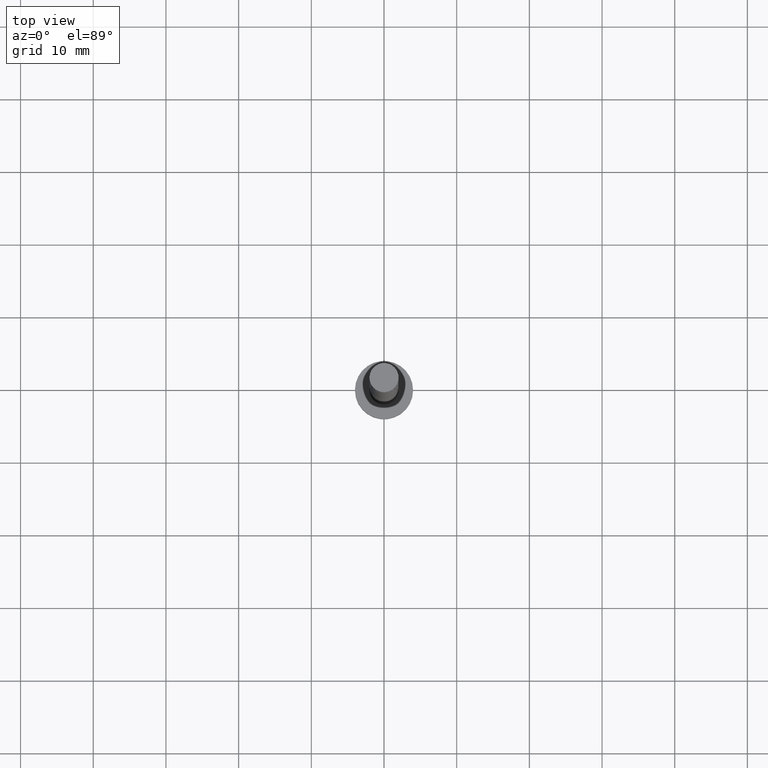
[diagram: clean part render]
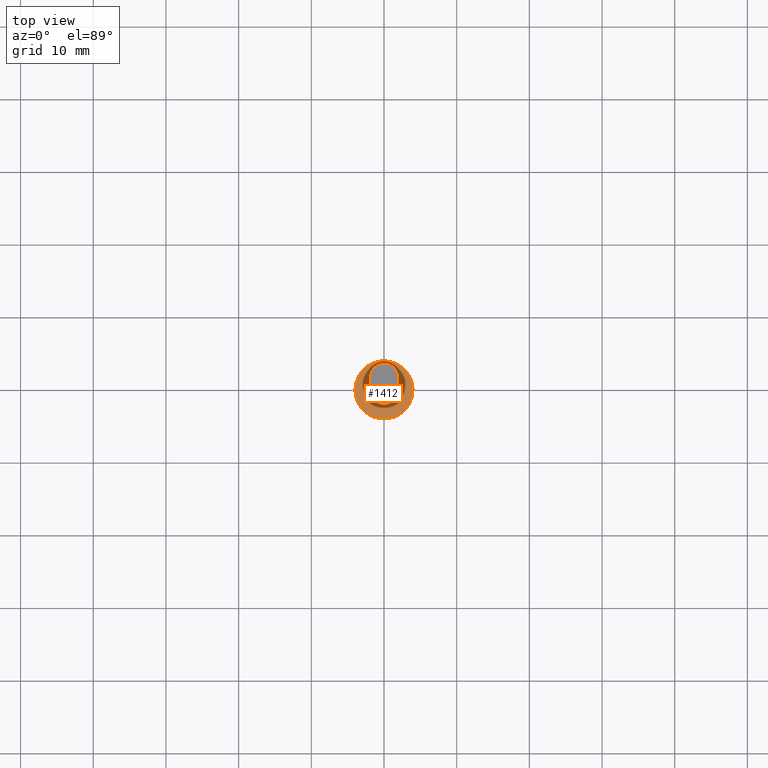
[diagram: same view with one face highlighted and labeled with its STEP entity id]
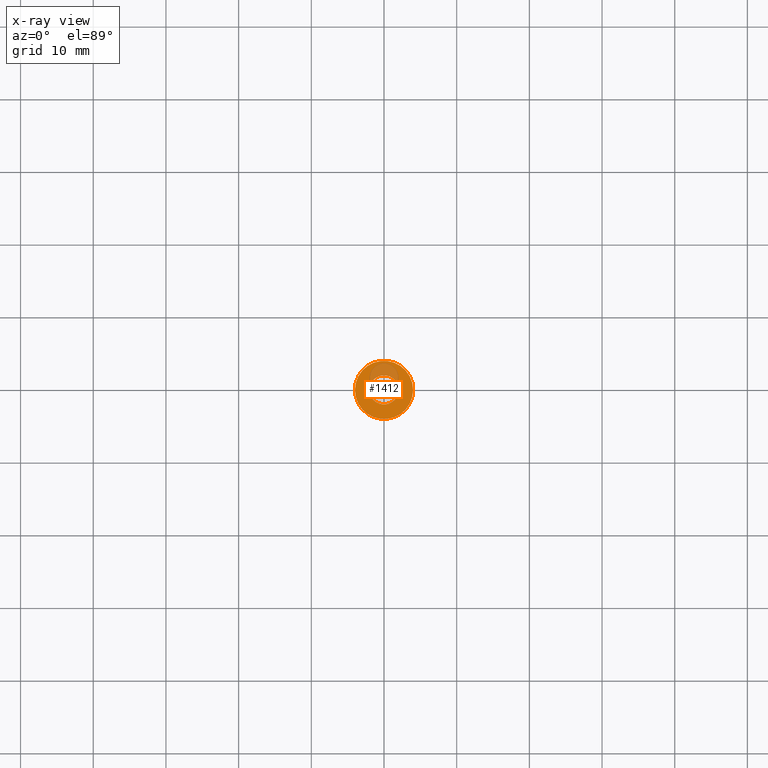
[diagram: x-ray of the same camera — body ghosted, the highlighted face saturated]
A machine part, top view. The second image highlights one B-rep face of the part: STEP entity #1412.
The next image is the same camera in x-ray: the body ghosted, the highlighted face saturated — about 18% of this face is hidden behind the body in this view.
In plain terms, the highlighted planar face has unit normal (0, 0, 1).
Its self-contained STEP definition (entity closure, byte-faithful):
#10 = CARTESIAN_POINT ( 'NONE',  ( 0.000000000000000000, 0.000000000000000000, 3.000000000000000000 ) ) ;
#100 = PLANE ( 'NONE',  #815 ) ;
#104 = CARTESIAN_POINT ( 'NONE',  ( 0.000000000000000000, 0.000000000000000000, 3.000000000000000000 ) ) ;
#106 = ORIENTED_EDGE ( 'NONE', *, *, #763, .T. ) ;
#137 = CARTESIAN_POINT ( 'NONE',  ( -2.000000000000000000, 0.000000000000000000, 3.000000000000000000 ) ) ;
#144 = DIRECTION ( 'NONE',  ( 0.000000000000000000, 0.000000000000000000, 1.000000000000000000 ) ) ;
#205 = CIRCLE ( 'NONE', #720, 2.000000000000000000 ) ;
#212 = DIRECTION ( 'NONE',  ( 0.000000000000000000, 0.000000000000000000, 1.000000000000000000 ) ) ;
#218 = ORIENTED_EDGE ( 'NONE', *, *, #444, .T. ) ;
#254 = VERTEX_POINT ( 'NONE', #598 ) ;
#277 = CIRCLE ( 'NONE', #902, 2.000000000000000000 ) ;
#311 = DIRECTION ( 'NONE',  ( 0.000000000000000000, 0.000000000000000000, 1.000000000000000000 ) ) ;
#346 = ORIENTED_EDGE ( 'NONE', *, *, #1288, .F. ) ;
#378 = DIRECTION ( 'NONE',  ( 1.000000000000000000, 0.000000000000000000, 0.000000000000000000 ) ) ;
#419 = AXIS2_PLACEMENT_3D ( 'NONE', #104, #535, #898 ) ;
#440 = AXIS2_PLACEMENT_3D ( 'NONE', #10, #144, #378 ) ;
#444 = EDGE_CURVE ( 'NONE', #978, #254, #1206, .T. ) ;
#448 = DIRECTION ( 'NONE',  ( 1.000000000000000000, 0.000000000000000000, -0.000000000000000000 ) ) ;
#535 = DIRECTION ( 'NONE',  ( 0.000000000000000000, 0.000000000000000000, 1.000000000000000000 ) ) ;
#536 = VERTEX_POINT ( 'NONE', #137 ) ;
#598 = CARTESIAN_POINT ( 'NONE',  ( -4.000000000000000000, 0.000000000000000000, 3.000000000000000000 ) ) ;
#636 = DIRECTION ( 'NONE',  ( 1.000000000000000000, 0.000000000000000000, 0.000000000000000000 ) ) ;
#661 = EDGE_LOOP ( 'NONE', ( #106, #218 ) ) ;
#720 = AXIS2_PLACEMENT_3D ( 'NONE', #853, #1188, #1201 ) ;
#763 = EDGE_CURVE ( 'NONE', #254, #978, #1347, .T. ) ;
#815 = AXIS2_PLACEMENT_3D ( 'NONE', #1343, #311, #448 ) ;
#847 = EDGE_CURVE ( 'NONE', #1401, #536, #277, .T. ) ;
#853 = CARTESIAN_POINT ( 'NONE',  ( 0.000000000000000000, 0.000000000000000000, 3.000000000000000000 ) ) ;
#898 = DIRECTION ( 'NONE',  ( 1.000000000000000000, 0.000000000000000000, 0.000000000000000000 ) ) ;
#902 = AXIS2_PLACEMENT_3D ( 'NONE', #1240, #212, #636 ) ;
#914 = CARTESIAN_POINT ( 'NONE',  ( 4.000000000000000000, 4.898587196589412829E-16, 3.000000000000000000 ) ) ;
#978 = VERTEX_POINT ( 'NONE', #914 ) ;
#1001 = ORIENTED_EDGE ( 'NONE', *, *, #847, .F. ) ;
#1081 = FACE_BOUND ( 'NONE', #1268, .T. ) ;
#1188 = DIRECTION ( 'NONE',  ( 0.000000000000000000, 0.000000000000000000, 1.000000000000000000 ) ) ;
#1201 = DIRECTION ( 'NONE',  ( 1.000000000000000000, 0.000000000000000000, 0.000000000000000000 ) ) ;
#1206 = CIRCLE ( 'NONE', #440, 4.000000000000000000 ) ;
#1240 = CARTESIAN_POINT ( 'NONE',  ( 0.000000000000000000, 0.000000000000000000, 3.000000000000000000 ) ) ;
#1268 = EDGE_LOOP ( 'NONE', ( #346, #1001 ) ) ;
#1288 = EDGE_CURVE ( 'NONE', #536, #1401, #205, .T. ) ;
#1343 = CARTESIAN_POINT ( 'NONE',  ( 0.000000000000000000, 0.000000000000000000, 3.000000000000000000 ) ) ;
#1347 = CIRCLE ( 'NONE', #419, 4.000000000000000000 ) ;
#1401 = VERTEX_POINT ( 'NONE', #1414 ) ;
#1412 = ADVANCED_FACE ( 'NONE', ( #1081, #1444 ), #100, .T. ) ;
#1414 = CARTESIAN_POINT ( 'NONE',  ( 2.000000000000000000, 2.449293598294705921E-16, 3.000000000000000000 ) ) ;
#1444 = FACE_OUTER_BOUND ( 'NONE', #661, .T. ) ;